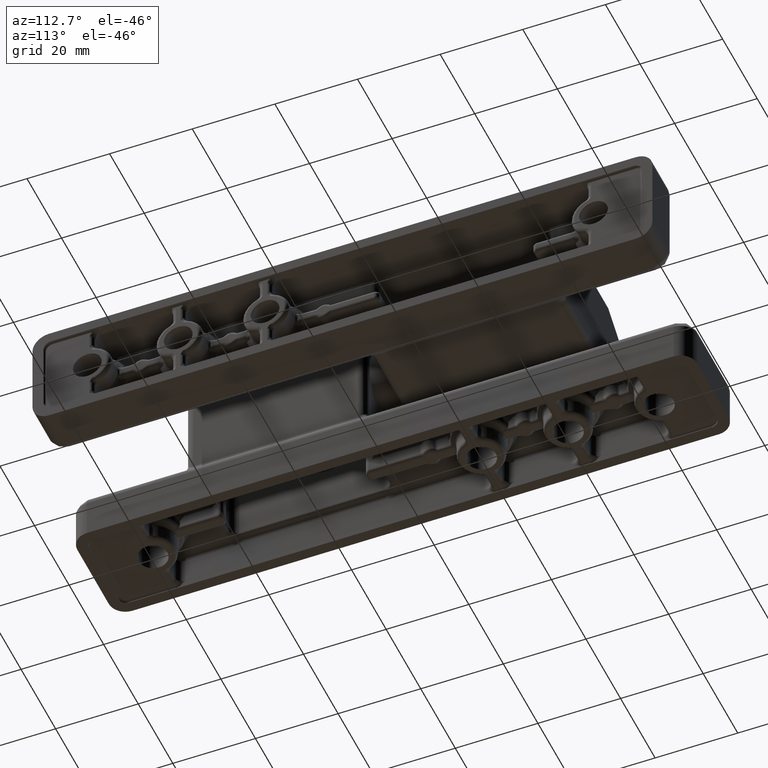
[diagram: clean part render]
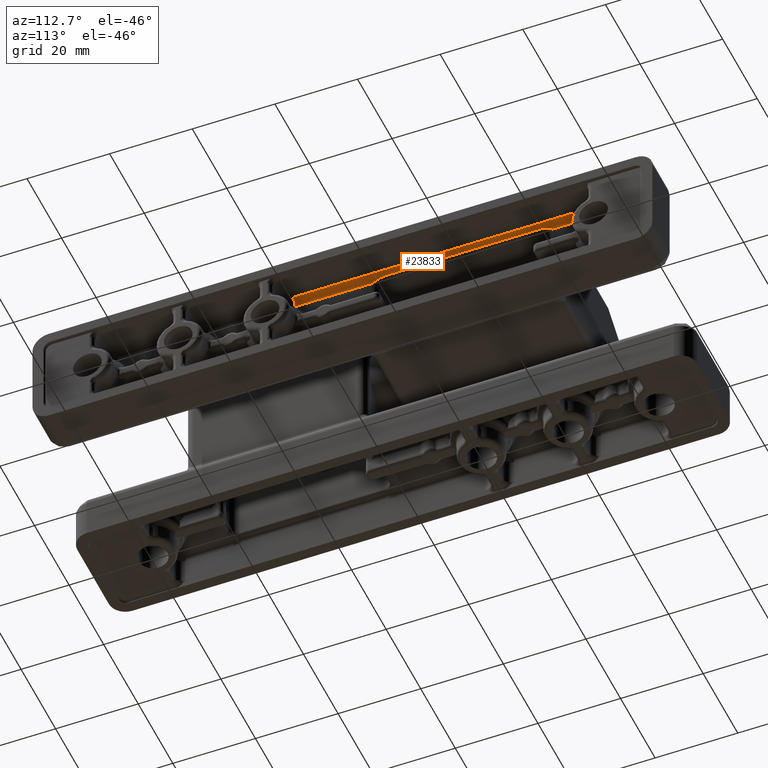
[diagram: same view with one face highlighted and labeled with its STEP entity id]
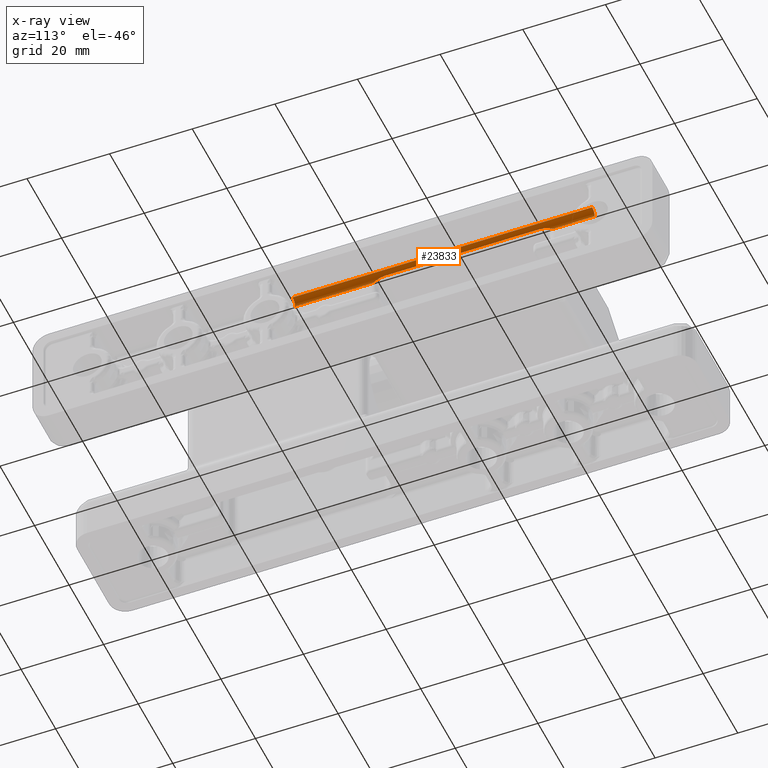
[diagram: x-ray of the same camera — body ghosted, the highlighted face saturated]
A machine part, auxiliary view. The second image highlights one B-rep face of the part: STEP entity #23833.
The next image is the same camera in x-ray: the body ghosted, the highlighted face saturated — about 0% of this face is hidden behind the body in this view.
In plain terms, the highlighted cylindrical surface (edge-blend (fillet) strip) has radius 1.5 mm, axis along (0, -1, 0).
Its self-contained STEP definition (entity closure, byte-faithful):
#1328=CYLINDRICAL_SURFACE('',#26273,1.5);
#2104=B_SPLINE_CURVE_WITH_KNOTS('',3,(#78840,#78841,#78842,#78843,#78844,
#78845,#78846,#78847,#78848,#78849),.UNSPECIFIED.,.F.,.F.,(4,2,2,2,4),(0.,
1.26241259450686,2.48657026190745,3.25166880403282,3.72985539286118),
 .UNSPECIFIED.);
#2295=B_SPLINE_CURVE_WITH_KNOTS('',3,(#89929,#89930,#89931,#89932,#89933,
#89934,#89935,#89936,#89937,#89938),.UNSPECIFIED.,.F.,.F.,(4,2,2,2,4),(0.,
1.26219493612872,2.4861415408596,3.2511081688164,3.7292123112894),
 .UNSPECIFIED.);
#3213=CIRCLE('',#25496,1.5);
#3633=CIRCLE('',#26272,1.5);
#5323=FACE_OUTER_BOUND('',#6841,.T.);
#6841=EDGE_LOOP('',(#20720,#20721,#20722,#20723,#20724,#20725,#20726,#20727));
#7510=LINE('',#75364,#8408);
#7568=LINE('',#78751,#8466);
#7760=LINE('',#89861,#8658);
#7762=LINE('',#89868,#8660);
#8408=VECTOR('',#30178,72.5);
#8466=VECTOR('',#30488,18.8565326182641);
#8658=VECTOR('',#32000,37.4);
#8660=VECTOR('',#32008,10.1565326182641);
#10087=VERTEX_POINT('',#75358);
#10088=VERTEX_POINT('',#75362);
#10121=VERTEX_POINT('',#76001);
#10194=VERTEX_POINT('',#78749);
#10203=VERTEX_POINT('',#78838);
#10595=VERTEX_POINT('',#89171);
#10615=VERTEX_POINT('',#89860);
#10617=VERTEX_POINT('',#89866);
#13003=EDGE_CURVE('',#10087,#10088,#7510,.T.);
#13062=EDGE_CURVE('',#10088,#10121,#3213,.T.);
#13194=EDGE_CURVE('',#10121,#10194,#7568,.T.);
#13205=EDGE_CURVE('',#10203,#10194,#2104,.T.);
#13975=EDGE_CURVE('',#10615,#10203,#7760,.T.);
#13979=EDGE_CURVE('',#10595,#10617,#7762,.T.);
#13980=EDGE_CURVE('',#10595,#10615,#2295,.T.);
#13993=EDGE_CURVE('',#10617,#10087,#3633,.T.);
#20720=ORIENTED_EDGE('',*,*,#13003,.T.);
#20721=ORIENTED_EDGE('',*,*,#13062,.T.);
#20722=ORIENTED_EDGE('',*,*,#13194,.T.);
#20723=ORIENTED_EDGE('',*,*,#13205,.F.);
#20724=ORIENTED_EDGE('',*,*,#13975,.F.);
#20725=ORIENTED_EDGE('',*,*,#13980,.F.);
#20726=ORIENTED_EDGE('',*,*,#13979,.T.);
#20727=ORIENTED_EDGE('',*,*,#13993,.T.);
#23833=ADVANCED_FACE('',(#5323),#1328,.F.);
#25496=AXIS2_PLACEMENT_3D('',#76003,#30276,#30277);
#26272=AXIS2_PLACEMENT_3D('',#90379,#32047,#32048);
#26273=AXIS2_PLACEMENT_3D('',#90380,#32049,#32050);
#30178=DIRECTION('',(1.83697019872103E-16,1.,0.));
#30276=DIRECTION('center_axis',(1.83697019872103E-16,1.,0.));
#30277=DIRECTION('ref_axis',(-0.999961923064171,1.83690025252465E-16,0.00872653549837575));
#30488=DIRECTION('',(-1.83697019872103E-16,-1.,0.));
#32000=DIRECTION('',(1.83697019872103E-16,1.,0.));
#32008=DIRECTION('',(-1.83697019872103E-16,-1.,0.));
#32047=DIRECTION('center_axis',(-1.83697019872103E-16,-1.,0.));
#32048=DIRECTION('ref_axis',(6.12323399573676E-17,-1.12481983699639E-32,
1.));
#32049=DIRECTION('center_axis',(1.83697019872103E-16,1.,0.));
#32050=DIRECTION('ref_axis',(-0.704014724455968,1.29325406828641E-16,0.710185375623286));
#75358=CARTESIAN_POINT('',(151.471674548866,-57.,8.21308980324756));
#75362=CARTESIAN_POINT('',(151.471674548866,15.5,8.21308980324756));
#75364=CARTESIAN_POINT('',(151.471674548866,18.725,8.21308980324756));
#76001=CARTESIAN_POINT('',(152.971617433462,15.5,9.7));
#76003=CARTESIAN_POINT('Origin',(152.971617433462,15.5,8.2));
#78749=CARTESIAN_POINT('',(152.971617433462,-3.3565326182641,9.7));
#78751=CARTESIAN_POINT('',(152.971617433462,18.725,9.7));
#78838=CARTESIAN_POINT('',(152.085808716731,-6.39999999999999,9.41051349325922));
#78840=CARTESIAN_POINT('Ctrl Pts',(152.085808716731,-6.39999999999999,9.41051349325922));
#78841=CARTESIAN_POINT('Ctrl Pts',(152.085808716731,-5.97919580183104,9.41051349325922));
#78842=CARTESIAN_POINT('Ctrl Pts',(152.12463043477,-5.55874567873571,9.44086785039426));
#78843=CARTESIAN_POINT('Ctrl Pts',(152.267156015371,-4.79769314868733,9.52681872832417));
#78844=CARTESIAN_POINT('Ctrl Pts',(152.369129407707,-4.44911336635756,9.58041535563967));
#78845=CARTESIAN_POINT('Ctrl Pts',(152.579080213076,-3.95148018623133,9.65022621802557));
#78846=CARTESIAN_POINT('Ctrl Pts',(152.670548932755,-3.77627254106309,9.67303435552667));
#78847=CARTESIAN_POINT('Ctrl Pts',(152.835363831815,-3.52390279322753,9.69516746842869));
#78848=CARTESIAN_POINT('Ctrl Pts',(152.902315277011,-3.43524589099579,9.7));
#78849=CARTESIAN_POINT('Ctrl Pts',(152.971617433462,-3.3565326182641,9.7));
#89171=CARTESIAN_POINT('',(152.971617433462,-46.8434673817359,9.7));
#89860=CARTESIAN_POINT('',(152.085808716731,-43.8,9.41051349325922));
#89861=CARTESIAN_POINT('',(152.085808716731,18.725,9.41051349325922));
#89866=CARTESIAN_POINT('',(152.971617433462,-57.,9.7));
#89868=CARTESIAN_POINT('',(152.971617433462,18.725,9.7));
#89929=CARTESIAN_POINT('Ctrl Pts',(152.971617433462,-46.8434673817359,9.7));
#89930=CARTESIAN_POINT('Ctrl Pts',(152.78869128501,-46.6357001700048,9.7));
#89931=CARTESIAN_POINT('Ctrl Pts',(152.625347447741,-46.3609959303106,9.66612219120102));
#89932=CARTESIAN_POINT('Ctrl Pts',(152.365208795007,-45.7387595380078,9.5785959441023));
#89933=CARTESIAN_POINT('Ctrl Pts',(152.263652616903,-45.3886102472985,9.52490361131106));
#89934=CARTESIAN_POINT('Ctrl Pts',(152.15088713434,-44.7781646879606,9.45657214581798));
#89935=CARTESIAN_POINT('Ctrl Pts',(152.119690116254,-44.5315851887955,9.43477924375808));
#89936=CARTESIAN_POINT('Ctrl Pts',(152.091290962886,-44.1196953083297,9.41458016086369));
#89937=CARTESIAN_POINT('Ctrl Pts',(152.085808716731,-43.959368047491,9.41051349325922));
#89938=CARTESIAN_POINT('Ctrl Pts',(152.085808716731,-43.8,9.41051349325922));
#90379=CARTESIAN_POINT('Origin',(152.971617433462,-57.,8.2));
#90380=CARTESIAN_POINT('Origin',(152.971617433462,18.725,8.2));